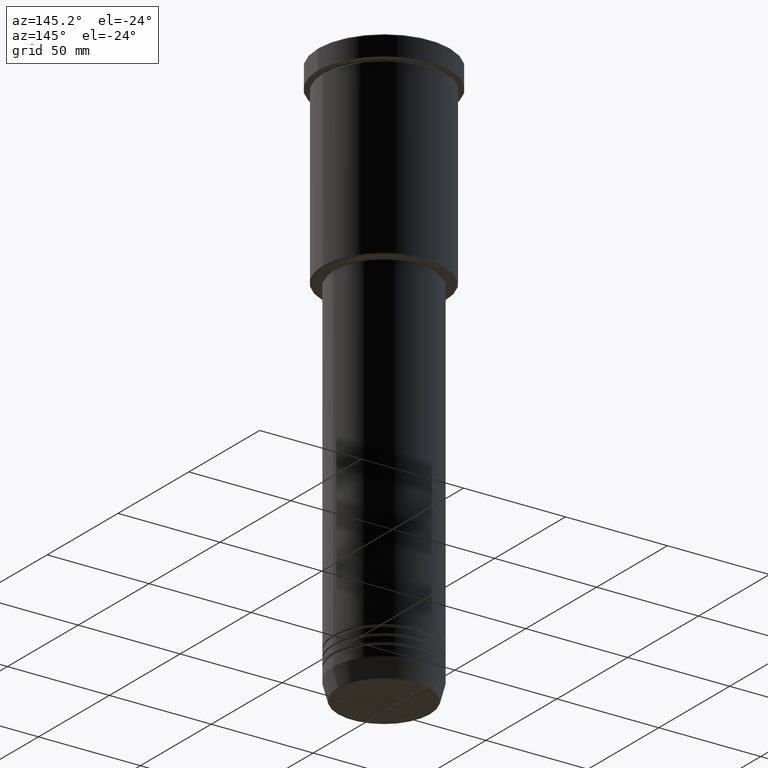
[diagram: clean part render]
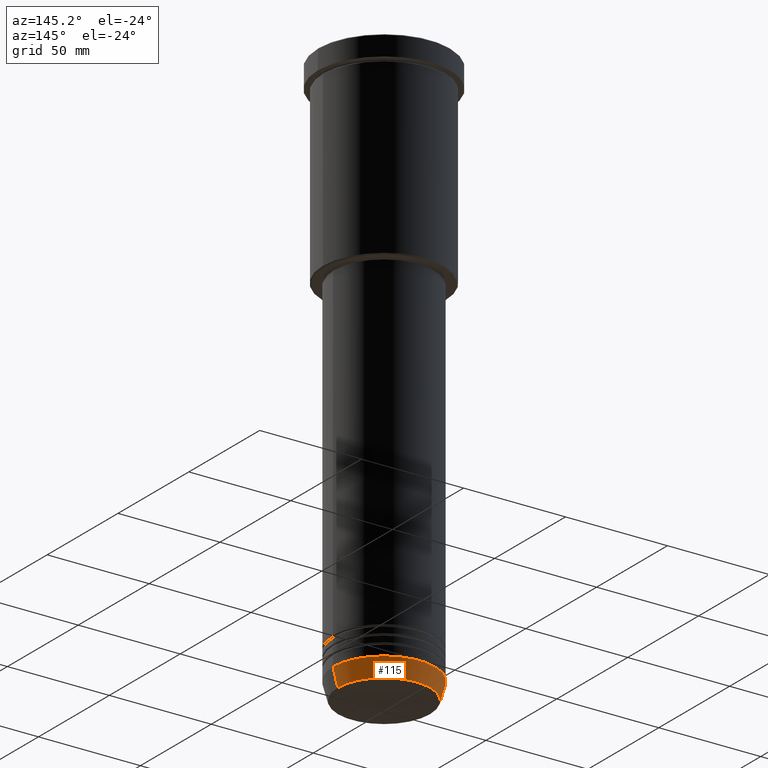
[diagram: same view with one face highlighted and labeled with its STEP entity id]
A machine part, auxiliary view. The second image highlights one B-rep face of the part: STEP entity #115.
In plain terms, the highlighted conical surface has half-angle 15 deg.
Its self-contained STEP definition (entity closure, byte-faithful):
#18 = CARTESIAN_POINT ( 'NONE',  ( 22.68775668727494477, 0.000000000000000000, -279.6294095225512706 ) ) ;
#22 = EDGE_CURVE ( 'NONE', #84, #554, #700, .T. ) ;
#38 = VERTEX_POINT ( 'NONE', #647 ) ;
#84 = VERTEX_POINT ( 'NONE', #18 ) ;
#115 = ADVANCED_FACE ( 'NONE', ( #861 ), #604, .T. ) ;
#131 = CARTESIAN_POINT ( 'NONE',  ( 25.00000000000000000, 0.000000000000000000, -271.0000000000000000 ) ) ;
#161 = ORIENTED_EDGE ( 'NONE', *, *, #280, .F. ) ;
#194 = CARTESIAN_POINT ( 'NONE',  ( -22.68775668727494477, 2.920032929279452581E-15, -279.6294095225512706 ) ) ;
#198 = VECTOR ( 'NONE', #325, 1000.000000000000114 ) ;
#237 = DIRECTION ( 'NONE',  ( 1.000000000000000000, 0.000000000000000000, 0.000000000000000000 ) ) ;
#280 = EDGE_CURVE ( 'NONE', #554, #38, #712, .T. ) ;
#291 = ORIENTED_EDGE ( 'NONE', *, *, #1046, .T. ) ;
#294 = DIRECTION ( 'NONE',  ( 0.2588190451025215166, 0.000000000000000000, 0.9659258262890679791 ) ) ;
#296 = AXIS2_PLACEMENT_3D ( 'NONE', #310, #302, #676 ) ;
#302 = DIRECTION ( 'NONE',  ( -0.000000000000000000, -0.000000000000000000, 1.000000000000000000 ) ) ;
#310 = CARTESIAN_POINT ( 'NONE',  ( 0.000000000000000000, 0.000000000000000000, -271.0000000000000000 ) ) ;
#325 = DIRECTION ( 'NONE',  ( -0.2588190451025215166, 3.169619151431774802E-17, 0.9659258262890679791 ) ) ;
#337 = CARTESIAN_POINT ( 'NONE',  ( -25.00000000000000000, 3.061616997868383043E-15, -271.0000000000000000 ) ) ;
#409 = ORIENTED_EDGE ( 'NONE', *, *, #618, .T. ) ;
#474 = DIRECTION ( 'NONE',  ( -0.000000000000000000, -0.000000000000000000, 1.000000000000000000 ) ) ;
#506 = CARTESIAN_POINT ( 'NONE',  ( 25.00000000000000000, 0.000000000000000000, -271.0000000000000000 ) ) ;
#518 = VECTOR ( 'NONE', #294, 1000.000000000000114 ) ;
#554 = VERTEX_POINT ( 'NONE', #506 ) ;
#604 = CONICAL_SURFACE ( 'NONE', #951, 25.00000000000000000, 0.2617993877991502960 ) ;
#618 = EDGE_CURVE ( 'NONE', #84, #924, #894, .T. ) ;
#619 = LINE ( 'NONE', #337, #198 ) ;
#647 = CARTESIAN_POINT ( 'NONE',  ( -25.00000000000000000, 3.061616997868383043E-15, -271.0000000000000000 ) ) ;
#676 = DIRECTION ( 'NONE',  ( 1.000000000000000000, 0.000000000000000000, 0.000000000000000000 ) ) ;
#682 = DIRECTION ( 'NONE',  ( 1.000000000000000000, 0.000000000000000000, 0.000000000000000000 ) ) ;
#700 = LINE ( 'NONE', #131, #518 ) ;
#712 = CIRCLE ( 'NONE', #296, 25.00000000000000000 ) ;
#793 = ORIENTED_EDGE ( 'NONE', *, *, #22, .F. ) ;
#831 = AXIS2_PLACEMENT_3D ( 'NONE', #956, #869, #237 ) ;
#861 = FACE_OUTER_BOUND ( 'NONE', #1136, .T. ) ;
#869 = DIRECTION ( 'NONE',  ( -0.000000000000000000, -0.000000000000000000, 1.000000000000000000 ) ) ;
#894 = CIRCLE ( 'NONE', #831, 22.68775668727494477 ) ;
#924 = VERTEX_POINT ( 'NONE', #194 ) ;
#951 = AXIS2_PLACEMENT_3D ( 'NONE', #1133, #474, #682 ) ;
#956 = CARTESIAN_POINT ( 'NONE',  ( 0.000000000000000000, 0.000000000000000000, -279.6294095225512706 ) ) ;
#1046 = EDGE_CURVE ( 'NONE', #924, #38, #619, .T. ) ;
#1133 = CARTESIAN_POINT ( 'NONE',  ( 0.000000000000000000, 0.000000000000000000, -271.0000000000000000 ) ) ;
#1136 = EDGE_LOOP ( 'NONE', ( #409, #291, #161, #793 ) ) ;